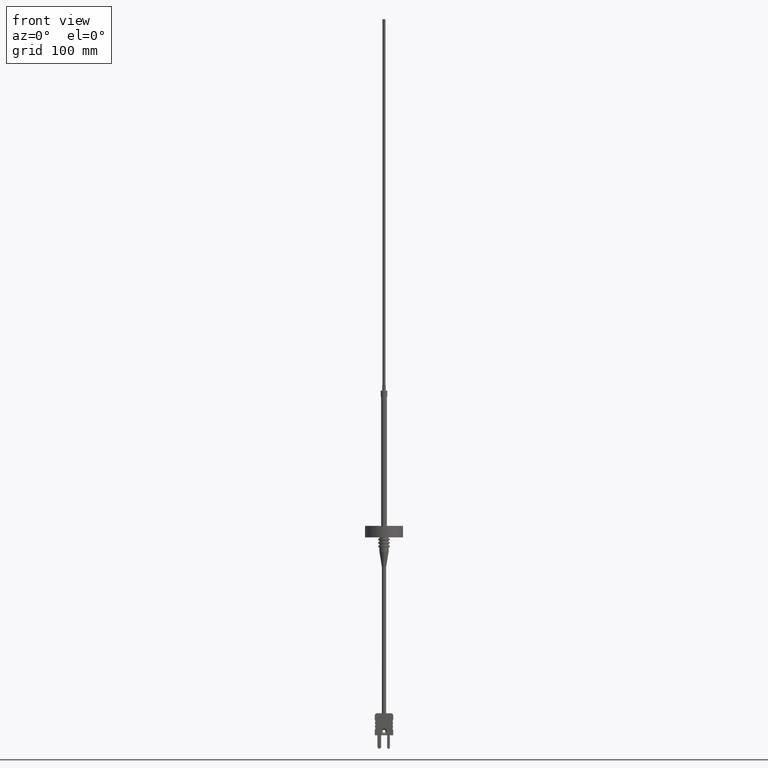
[diagram: clean part render]
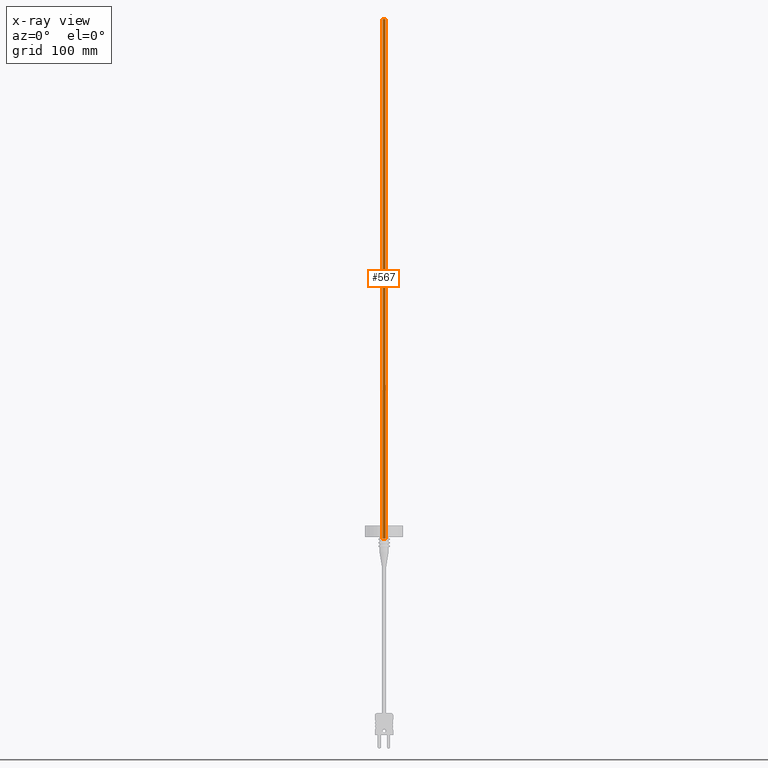
[diagram: x-ray — body ghosted, one internal face saturated and labeled with its STEP entity id]
A machine part, front view, then the same camera in x-ray: the body is ghosted and one INTERNAL B-rep face — a face not visible from any outside direction — is saturated and labeled: STEP entity #567.
In plain terms, the highlighted cylindrical surface (edge-blend (fillet) strip) has radius 1.25 mm, axis along (-0, -0, -1).
Its self-contained STEP definition (entity closure, byte-faithful):
#174 = CARTESIAN_POINT ( 'NONE',  ( -1.250000000000000000, 0.000000000000000000, 0.000000000000000000 ) ) ;
#567 = ADVANCED_FACE ( 'NONE', ( #8145 ), #3702, .T. ) ;
#944 = VERTEX_POINT ( 'NONE', #9645 ) ;
#1777 = VERTEX_POINT ( 'NONE', #8933 ) ;
#2061 = DIRECTION ( 'NONE',  ( -1.000000000000000000, 0.000000000000000000, 0.000000000000000000 ) ) ;
#2434 = EDGE_CURVE ( 'NONE', #1777, #4356, #4657, .T. ) ;
#2567 = LINE ( 'NONE', #4166, #7009 ) ;
#3657 = DIRECTION ( 'NONE',  ( -0.000000000000000000, -0.000000000000000000, -1.000000000000000000 ) ) ;
#3702 = CYLINDRICAL_SURFACE ( 'NONE', #9484, 1.250000000000000000 ) ;
#3712 = CARTESIAN_POINT ( 'NONE',  ( 0.000000000000000000, 0.000000000000000000, 450.0000000000000000 ) ) ;
#4166 = CARTESIAN_POINT ( 'NONE',  ( 1.250000000000000000, 1.530808498934191571E-16, 450.0000000000000000 ) ) ;
#4356 = VERTEX_POINT ( 'NONE', #174 ) ;
#4403 = ORIENTED_EDGE ( 'NONE', *, *, #7977, .F. ) ;
#4657 = CIRCLE ( 'NONE', #8354, 1.250000000000000000 ) ;
#4945 = ORIENTED_EDGE ( 'NONE', *, *, #8518, .F. ) ;
#5554 = DIRECTION ( 'NONE',  ( 0.000000000000000000, 0.000000000000000000, 1.000000000000000000 ) ) ;
#5638 = DIRECTION ( 'NONE',  ( -0.000000000000000000, -0.000000000000000000, -1.000000000000000000 ) ) ;
#5650 = ORIENTED_EDGE ( 'NONE', *, *, #9748, .T. ) ;
#5758 = CARTESIAN_POINT ( 'NONE',  ( -1.250000000000000000, 0.000000000000000000, 450.0000000000000000 ) ) ;
#5843 = DIRECTION ( 'NONE',  ( 1.000000000000000000, 0.000000000000000000, 0.000000000000000000 ) ) ;
#5851 = LINE ( 'NONE', #5758, #7184 ) ;
#5882 = CARTESIAN_POINT ( 'NONE',  ( 0.000000000000000000, 0.000000000000000000, 450.0000000000000000 ) ) ;
#6279 = AXIS2_PLACEMENT_3D ( 'NONE', #3712, #8982, #5843 ) ;
#6857 = VERTEX_POINT ( 'NONE', #7650 ) ;
#7009 = VECTOR ( 'NONE', #5638, 1000.000000000000000 ) ;
#7184 = VECTOR ( 'NONE', #8810, 1000.000000000000000 ) ;
#7218 = CARTESIAN_POINT ( 'NONE',  ( 0.000000000000000000, 0.000000000000000000, 0.000000000000000000 ) ) ;
#7650 = CARTESIAN_POINT ( 'NONE',  ( -1.250000000000000000, 0.000000000000000000, 450.0000000000000000 ) ) ;
#7977 = EDGE_CURVE ( 'NONE', #6857, #4356, #5851, .T. ) ;
#8145 = FACE_OUTER_BOUND ( 'NONE', #9785, .T. ) ;
#8354 = AXIS2_PLACEMENT_3D ( 'NONE', #7218, #5554, #9675 ) ;
#8514 = CIRCLE ( 'NONE', #6279, 1.250000000000000000 ) ;
#8518 = EDGE_CURVE ( 'NONE', #944, #6857, #8514, .T. ) ;
#8810 = DIRECTION ( 'NONE',  ( -0.000000000000000000, -0.000000000000000000, -1.000000000000000000 ) ) ;
#8933 = CARTESIAN_POINT ( 'NONE',  ( 1.250000000000000000, 1.530808498934191571E-16, 0.000000000000000000 ) ) ;
#8982 = DIRECTION ( 'NONE',  ( 0.000000000000000000, 0.000000000000000000, 1.000000000000000000 ) ) ;
#8989 = ORIENTED_EDGE ( 'NONE', *, *, #2434, .T. ) ;
#9484 = AXIS2_PLACEMENT_3D ( 'NONE', #5882, #3657, #2061 ) ;
#9645 = CARTESIAN_POINT ( 'NONE',  ( 1.250000000000000000, 1.530808498934191571E-16, 450.0000000000000000 ) ) ;
#9675 = DIRECTION ( 'NONE',  ( 1.000000000000000000, 0.000000000000000000, 0.000000000000000000 ) ) ;
#9748 = EDGE_CURVE ( 'NONE', #944, #1777, #2567, .T. ) ;
#9785 = EDGE_LOOP ( 'NONE', ( #4945, #5650, #8989, #4403 ) ) ;